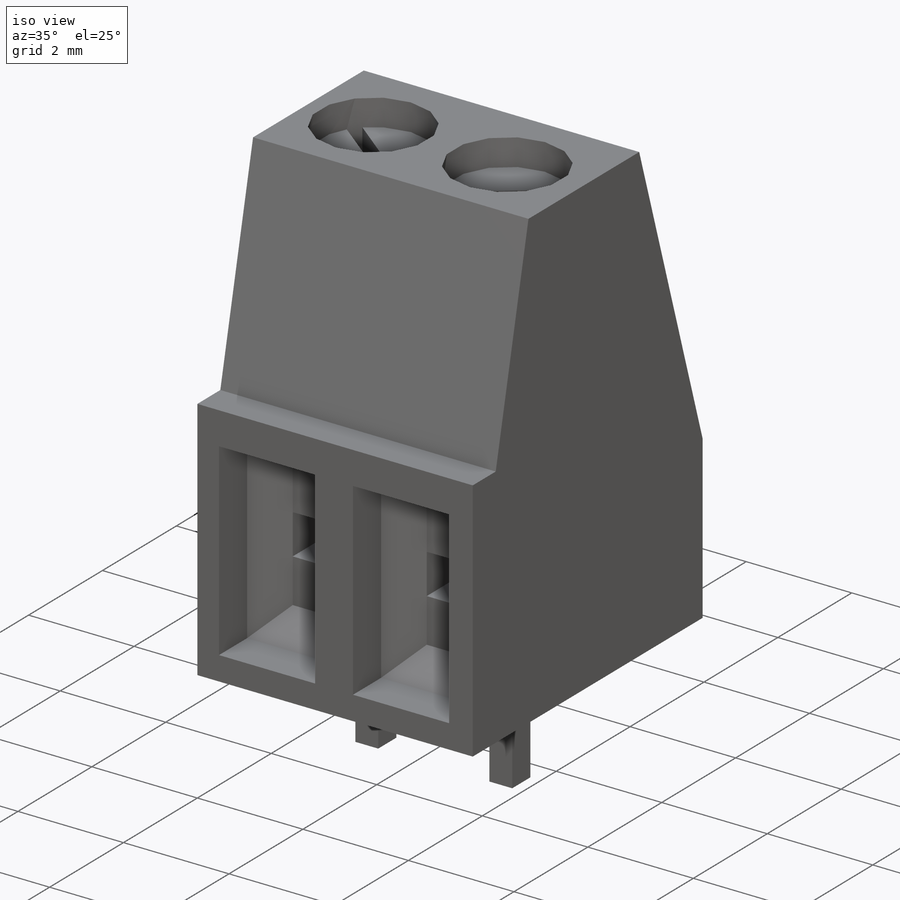
[diagram: iso view]
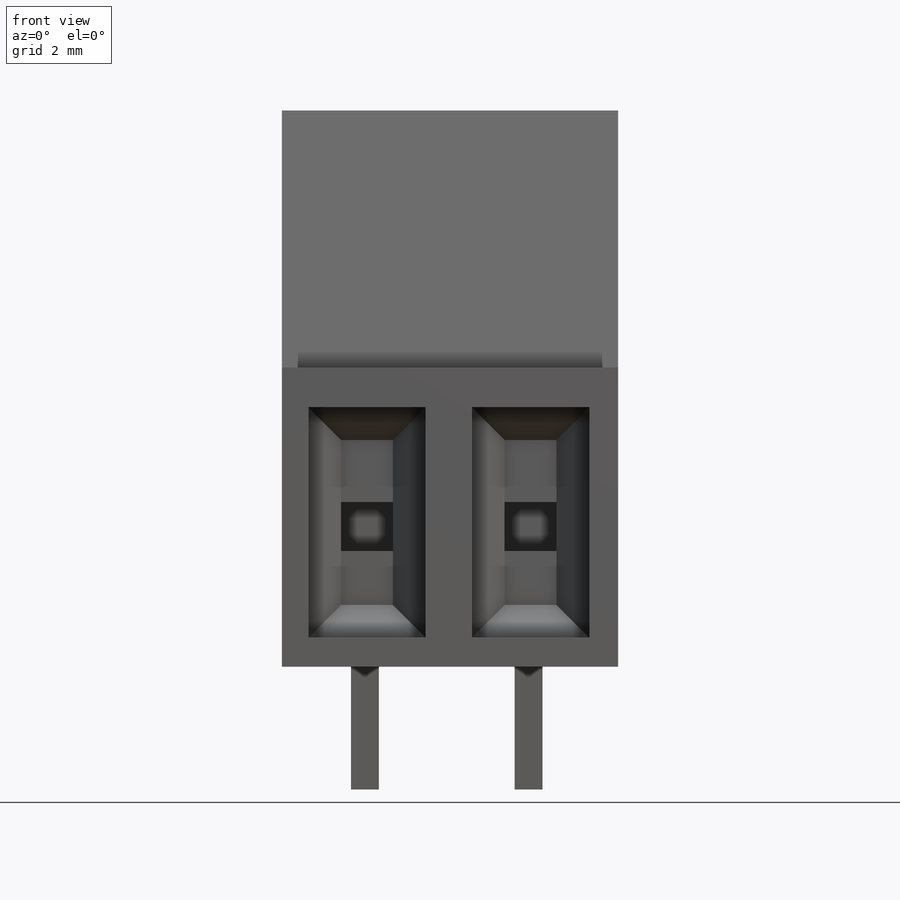
[diagram: front view]
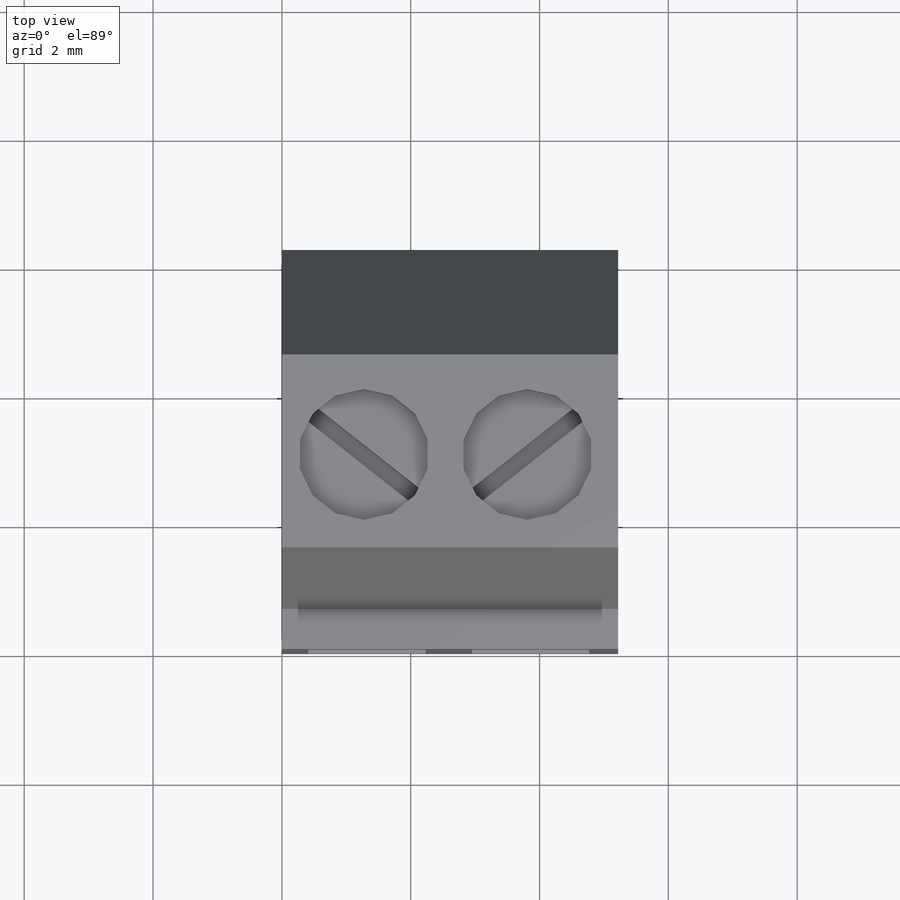
[diagram: top view]
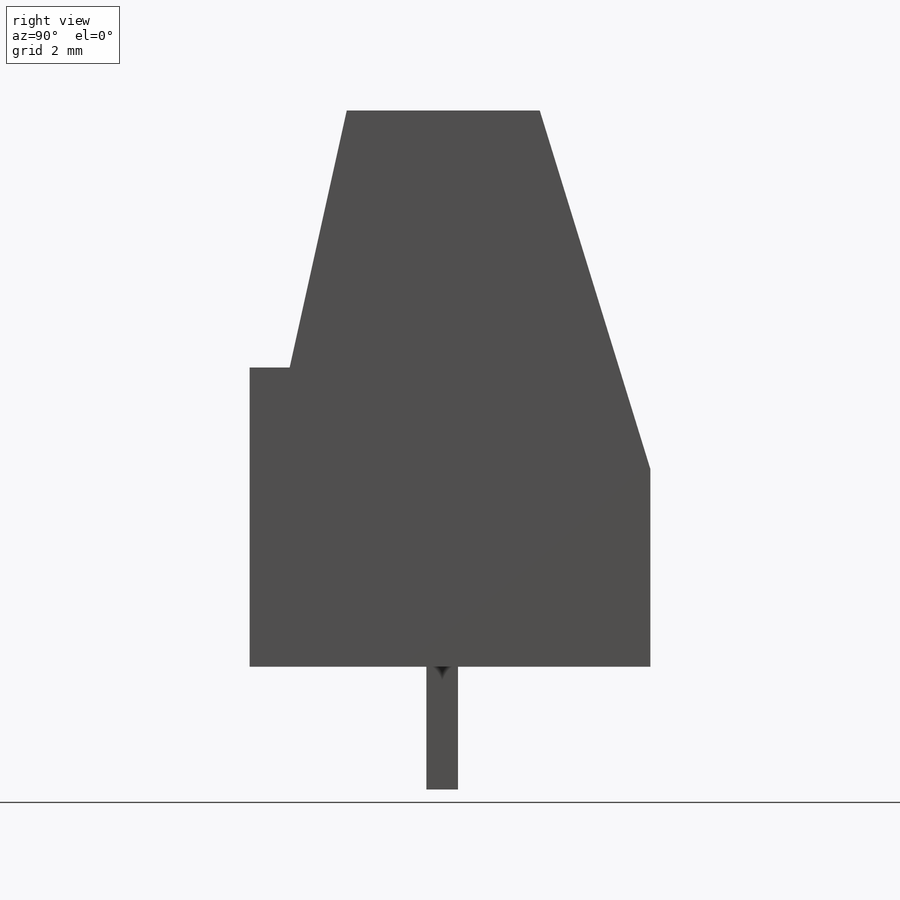
[diagram: right view]
SOLIDWORKS PART (.sldprt)
format: sldprt  version: not decoded by parser v0  size: 490,496 bytes
history: native  units: mm
features: sketch x10, cut_extrude x8, extrude x2, material x1, chamfer x1 (+13 scaffold rows collapsed)
feature tree (35):
  scaffold x13  (default folders/planes/origin — collapsed)
  material  "Material <not specified>"
  sketch  "Sketch1"  dims[D1=20.701mm D2=6.223mm]
  extrude  "Extrude1"  Depth=8.636mm
  sketch  "Sketch2"
  cut_extrude  "Cut-Extrude1"  Depth=25.4mm
  sketch  "Sketch3"
  cut_extrude  "Cut-Extrude2"  Depth=25.4mm
  sketch  "Sketch4"  dims[D1=1.27mm]
  cut_extrude  "Cut-Extrude3"  Depth=0.508mm
  sketch  "Sketch5"  dims[D1=0.127mm D2=0.127mm]
  cut_extrude  "Cut-Extrude4"  Depth=0.508mm
  sketch  "Sketch6"
  cut_extrude  "Cut-Extrude5"  Depth=1.27mm
  chamfer  "Chamfer1"  Distance=0.508mm Angle=45deg
  sketch  "Sketch7"
  cut_extrude  "Cut-Extrude6"  Depth=1.27mm
  sketch  "Sketch8"
  extrude  "Extrude2"  Depth=1.905mm
  sketch  "Sketch9"
  cut_extrude  "Cut-Extrude7"  Depth=25.4mm
  sketch  "Sketch10"  dims[D1=2.3368mm]
  cut_extrude  "Cut-Extrude8"  Depth=25.4mm
decode coverage: 15 of 21 modeling features carry decoded parameters
note: suppression state not decoded; provenance and decode notes live in map.json
